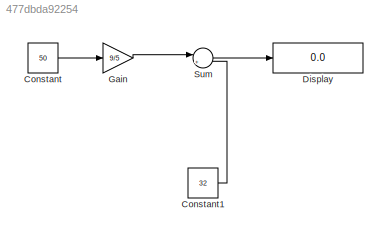
MODEL slx_477dbda92254
KIND model
BLOCK [Constant] Constant
  Value = 50
BLOCK [Constant] Constant1
  Value = 32
BLOCK [Display] Display
  Decimation = 1
  Lockdown = off
  Ports = [1]
BLOCK [Gain] Gain
  Gain = 9/5
  OutDataTypeStr = Inherit: Inherit via internal rule
  ParamDataTypeStr = Inherit: Inherit via internal rule
  SaturateOnIntegerOverflow = off
BLOCK [Sum] Sum
  IconShape = round
  InputSameDT = off
  Inputs = |++
  OutDataTypeStr = Inherit: Inherit via internal rule
  Ports = [2, 1]
  SaturateOnIntegerOverflow = off
LINE Constant1:1 -> Sum:2
LINE Constant:1 -> Gain:1
LINE Gain:1 -> Sum:1
LINE Sum:1 -> Display:1
